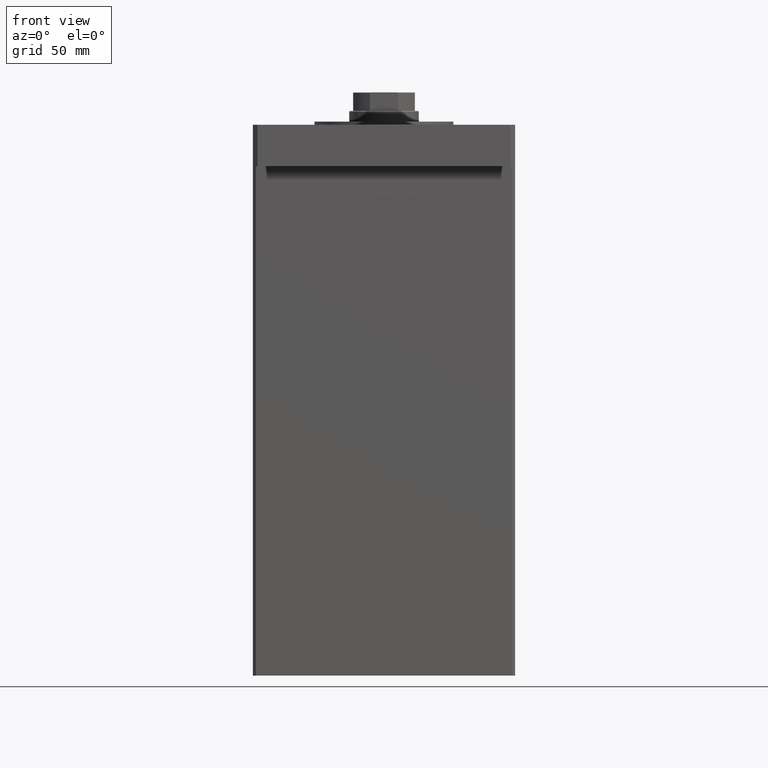
[diagram: clean part render]
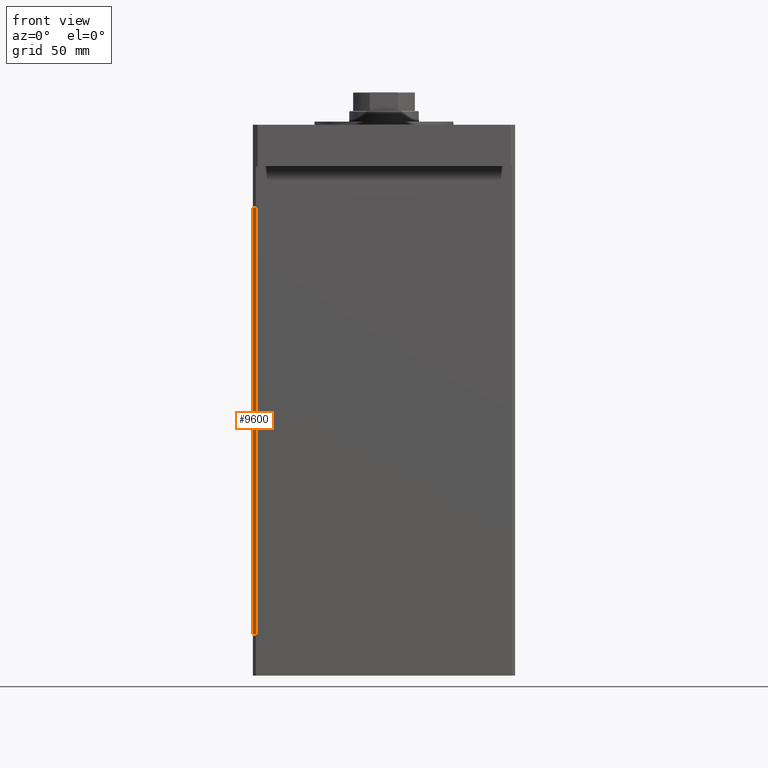
[diagram: same view with one face highlighted and labeled with its STEP entity id]
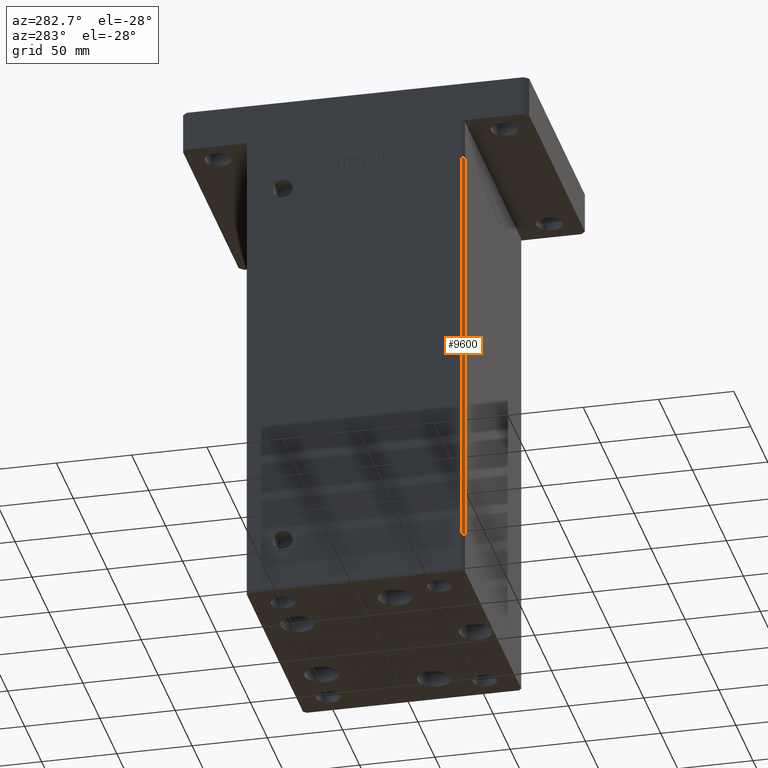
[diagram: same view with one face highlighted and labeled with its STEP entity id]
A machine part, front view. The second image highlights one B-rep face of the part: STEP entity #9600.
A second angle (auxiliary view) of the same face is appended — the face is thin or edge-on in the first view.
In plain terms, the highlighted planar face has unit normal (0.7071, 0.7071, 0).
Its self-contained STEP definition (entity closure, byte-faithful):
#1033 = CARTESIAN_POINT ( 'NONE',  ( -84.99999999999998579, -70.50000000000001421, 276.0000000000000000 ) ) ;
#3349 = DIRECTION ( 'NONE',  ( -0.000000000000000000, -0.000000000000000000, -1.000000000000000000 ) ) ;
#5260 = CARTESIAN_POINT ( 'NONE',  ( -84.99999999999998579, -70.50000000000001421, 276.0000000000000000 ) ) ;
#5810 = VERTEX_POINT ( 'NONE', #40375 ) ;
#6380 = EDGE_CURVE ( 'NONE', #25486, #42148, #25678, .T. ) ;
#6850 = CARTESIAN_POINT ( 'NONE',  ( -84.99999999999998579, -70.50000000000001421, 0.000000000000000000 ) ) ;
#8248 = DIRECTION ( 'NONE',  ( -0.7071067811865474617, 0.7071067811865474617, 0.000000000000000000 ) ) ;
#9300 = VECTOR ( 'NONE', #3349, 1000.000000000000000 ) ;
#9600 = ADVANCED_FACE ( 'NONE', ( #45342 ), #40210, .F. ) ;
#11011 = EDGE_LOOP ( 'NONE', ( #14072, #13504, #35711, #15460 ) ) ;
#11217 = CARTESIAN_POINT ( 'NONE',  ( -84.99999999999998579, -70.50000000000001421, 0.000000000000000000 ) ) ;
#13111 = DIRECTION ( 'NONE',  ( 0.7071067811865474617, -0.7071067811865474617, 0.000000000000000000 ) ) ;
#13504 = ORIENTED_EDGE ( 'NONE', *, *, #41020, .F. ) ;
#14072 = ORIENTED_EDGE ( 'NONE', *, *, #29215, .T. ) ;
#14903 = VECTOR ( 'NONE', #21900, 1000.000000000000000 ) ;
#15460 = ORIENTED_EDGE ( 'NONE', *, *, #6380, .T. ) ;
#17775 = VERTEX_POINT ( 'NONE', #28511 ) ;
#18075 = VECTOR ( 'NONE', #19329, 1000.000000000000114 ) ;
#19329 = DIRECTION ( 'NONE',  ( 0.7071067811865474617, -0.7071067811865474617, 0.000000000000000000 ) ) ;
#20938 = EDGE_CURVE ( 'NONE', #25486, #17775, #46405, .T. ) ;
#21900 = DIRECTION ( 'NONE',  ( -0.000000000000000000, -0.000000000000000000, -1.000000000000000000 ) ) ;
#23674 = AXIS2_PLACEMENT_3D ( 'NONE', #36155, #52409, #8248 ) ;
#25486 = VERTEX_POINT ( 'NONE', #33447 ) ;
#25678 = LINE ( 'NONE', #1033, #14903 ) ;
#28511 = CARTESIAN_POINT ( 'NONE',  ( -82.99999999999998579, -72.50000000000002842, 276.0000000000000000 ) ) ;
#29215 = EDGE_CURVE ( 'NONE', #42148, #5810, #43937, .T. ) ;
#33447 = CARTESIAN_POINT ( 'NONE',  ( -84.99999999999998579, -70.50000000000001421, 276.0000000000000000 ) ) ;
#35711 = ORIENTED_EDGE ( 'NONE', *, *, #20938, .F. ) ;
#36123 = LINE ( 'NONE', #52646, #9300 ) ;
#36155 = CARTESIAN_POINT ( 'NONE',  ( -84.99999999999998579, -70.50000000000001421, 276.0000000000000000 ) ) ;
#40210 = PLANE ( 'NONE',  #23674 ) ;
#40375 = CARTESIAN_POINT ( 'NONE',  ( -82.99999999999998579, -72.50000000000002842, 0.000000000000000000 ) ) ;
#41020 = EDGE_CURVE ( 'NONE', #17775, #5810, #36123, .T. ) ;
#42148 = VERTEX_POINT ( 'NONE', #11217 ) ;
#43937 = LINE ( 'NONE', #6850, #18075 ) ;
#45342 = FACE_OUTER_BOUND ( 'NONE', #11011, .T. ) ;
#46405 = LINE ( 'NONE', #5260, #51496 ) ;
#51496 = VECTOR ( 'NONE', #13111, 1000.000000000000114 ) ;
#52409 = DIRECTION ( 'NONE',  ( 0.7071067811865475727, 0.7071067811865475727, -0.000000000000000000 ) ) ;
#52646 = CARTESIAN_POINT ( 'NONE',  ( -82.99999999999998579, -72.50000000000002842, 276.0000000000000000 ) ) ;